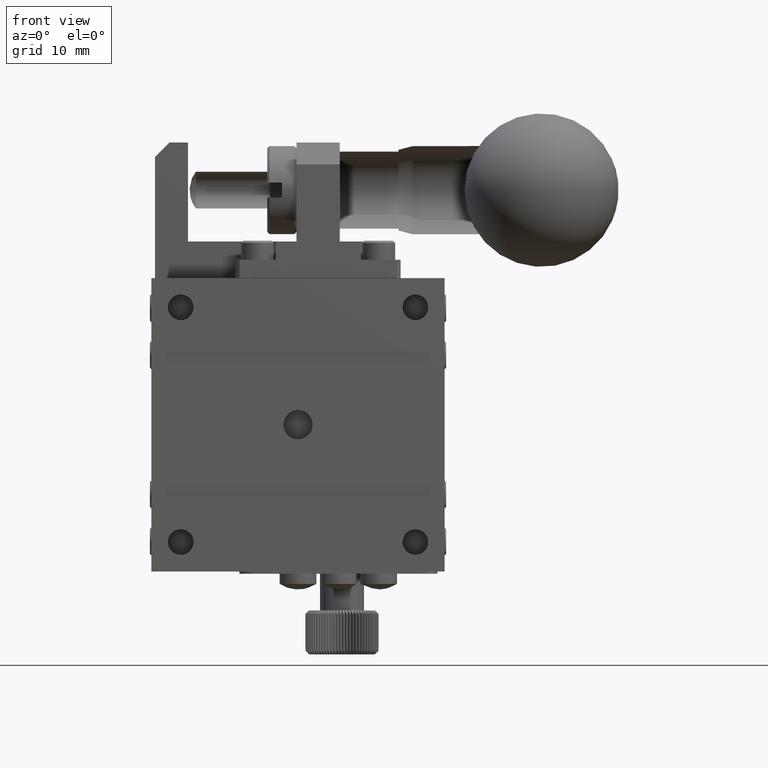
[diagram: clean part render]
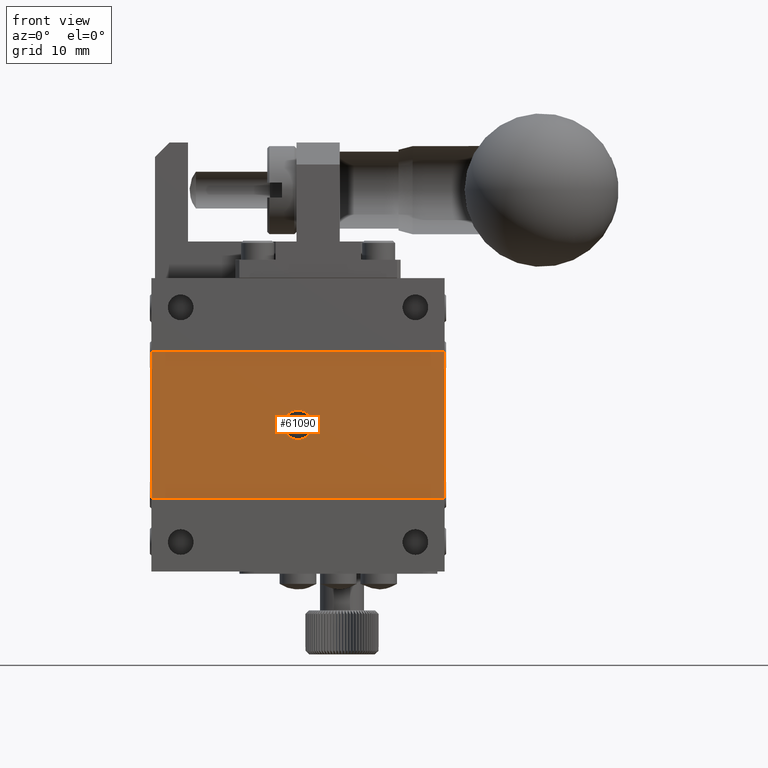
[diagram: same view with one face highlighted and labeled with its STEP entity id]
A machine part, front view. The second image highlights one B-rep face of the part: STEP entity #61090.
In plain terms, the highlighted planar face has unit normal (0, 1, 0).
Its self-contained STEP definition (entity closure, byte-faithful):
#2240 = VECTOR ( 'NONE', #89806, 1000.000000000000000 ) ;
#2518 = ORIENTED_EDGE ( 'NONE', *, *, #40478, .F. ) ;
#3892 = CARTESIAN_POINT ( 'NONE',  ( 1.109590059148117591, 0.3499999999999997002, 10.00000000000000178 ) ) ;
#6171 = EDGE_LOOP ( 'NONE', ( #69840 ) ) ;
#10105 = CARTESIAN_POINT ( 'NONE',  ( 1.109590059148117591, 0.3499999999999999778, 0.000000000000000000 ) ) ;
#14866 = FACE_BOUND ( 'NONE', #6171, .T. ) ;
#15613 = CARTESIAN_POINT ( 'NONE',  ( 41.10959005914811826, 0.3499999999999999778, 0.000000000000000000 ) ) ;
#17744 = EDGE_CURVE ( 'NONE', #79697, #91321, #88464, .T. ) ;
#19551 = AXIS2_PLACEMENT_3D ( 'NONE', #72722, #64955, #58114 ) ;
#20933 = CARTESIAN_POINT ( 'NONE',  ( 21.10959005914811826, 0.3499999999999999778, -10.00000000000000000 ) ) ;
#23322 = CARTESIAN_POINT ( 'NONE',  ( 1.109590059148117591, 0.3499999999999998113, -10.00000000000000000 ) ) ;
#26394 = VERTEX_POINT ( 'NONE', #62844 ) ;
#26586 = DIRECTION ( 'NONE',  ( 1.000000000000000000, 0.000000000000000000, -0.000000000000000000 ) ) ;
#26942 = CARTESIAN_POINT ( 'NONE',  ( 21.10959005914811826, 0.3499999999999999778, 0.000000000000000000 ) ) ;
#27163 = AXIS2_PLACEMENT_3D ( 'NONE', #26942, #49770, #56569 ) ;
#28787 = VECTOR ( 'NONE', #63839, 1000.000000000000000 ) ;
#31231 = EDGE_CURVE ( 'NONE', #91321, #68349, #65654, .T. ) ;
#31802 = CIRCLE ( 'NONE', #27163, 2.000000000000000000 ) ;
#37240 = CARTESIAN_POINT ( 'NONE',  ( 41.10959005914811826, 0.3499999999999998113, -10.00000000000000000 ) ) ;
#37905 = DIRECTION ( 'NONE',  ( -0.000000000000000000, 0.000000000000000000, -1.000000000000000000 ) ) ;
#40478 = EDGE_CURVE ( 'NONE', #75928, #79697, #71778, .T. ) ;
#44448 = PLANE ( 'NONE',  #19551 ) ;
#49409 = CARTESIAN_POINT ( 'NONE',  ( 21.10959005914811826, 0.3499999999999999778, 10.00000000000000178 ) ) ;
#49770 = DIRECTION ( 'NONE',  ( 0.000000000000000000, -1.000000000000000000, -0.000000000000000000 ) ) ;
#50950 = ORIENTED_EDGE ( 'NONE', *, *, #17744, .F. ) ;
#54265 = ORIENTED_EDGE ( 'NONE', *, *, #84481, .F. ) ;
#54875 = VECTOR ( 'NONE', #26586, 1000.000000000000000 ) ;
#56569 = DIRECTION ( 'NONE',  ( 0.000000000000000000, 0.000000000000000000, 1.000000000000000000 ) ) ;
#58114 = DIRECTION ( 'NONE',  ( 0.000000000000000000, -0.000000000000000000, 1.000000000000000000 ) ) ;
#60201 = LINE ( 'NONE', #10105, #2240 ) ;
#61090 = ADVANCED_FACE ( 'NONE', ( #95500, #14866 ), #44448, .F. ) ;
#62844 = CARTESIAN_POINT ( 'NONE',  ( 21.10959005914811826, 0.3499999999999999778, 2.000000000000000000 ) ) ;
#63839 = DIRECTION ( 'NONE',  ( -1.000000000000000000, -0.000000000000000000, 0.000000000000000000 ) ) ;
#64955 = DIRECTION ( 'NONE',  ( 0.000000000000000000, 1.000000000000000000, 0.000000000000000000 ) ) ;
#65654 = LINE ( 'NONE', #20933, #28787 ) ;
#67273 = ORIENTED_EDGE ( 'NONE', *, *, #31231, .F. ) ;
#68349 = VERTEX_POINT ( 'NONE', #23322 ) ;
#69840 = ORIENTED_EDGE ( 'NONE', *, *, #86350, .F. ) ;
#71778 = LINE ( 'NONE', #49409, #54875 ) ;
#72722 = CARTESIAN_POINT ( 'NONE',  ( 21.10959005914811826, 0.3499999999999999778, 0.000000000000000000 ) ) ;
#75928 = VERTEX_POINT ( 'NONE', #3892 ) ;
#79697 = VERTEX_POINT ( 'NONE', #80974 ) ;
#80974 = CARTESIAN_POINT ( 'NONE',  ( 41.10959005914811826, 0.3499999999999998113, 10.00000000000000178 ) ) ;
#81923 = VECTOR ( 'NONE', #37905, 1000.000000000000000 ) ;
#84481 = EDGE_CURVE ( 'NONE', #68349, #75928, #60201, .T. ) ;
#86350 = EDGE_CURVE ( 'NONE', #26394, #26394, #31802, .T. ) ;
#88464 = LINE ( 'NONE', #15613, #81923 ) ;
#89806 = DIRECTION ( 'NONE',  ( 0.000000000000000000, -0.000000000000000000, 1.000000000000000000 ) ) ;
#90180 = EDGE_LOOP ( 'NONE', ( #2518, #54265, #67273, #50950 ) ) ;
#91321 = VERTEX_POINT ( 'NONE', #37240 ) ;
#95500 = FACE_OUTER_BOUND ( 'NONE', #90180, .T. ) ;